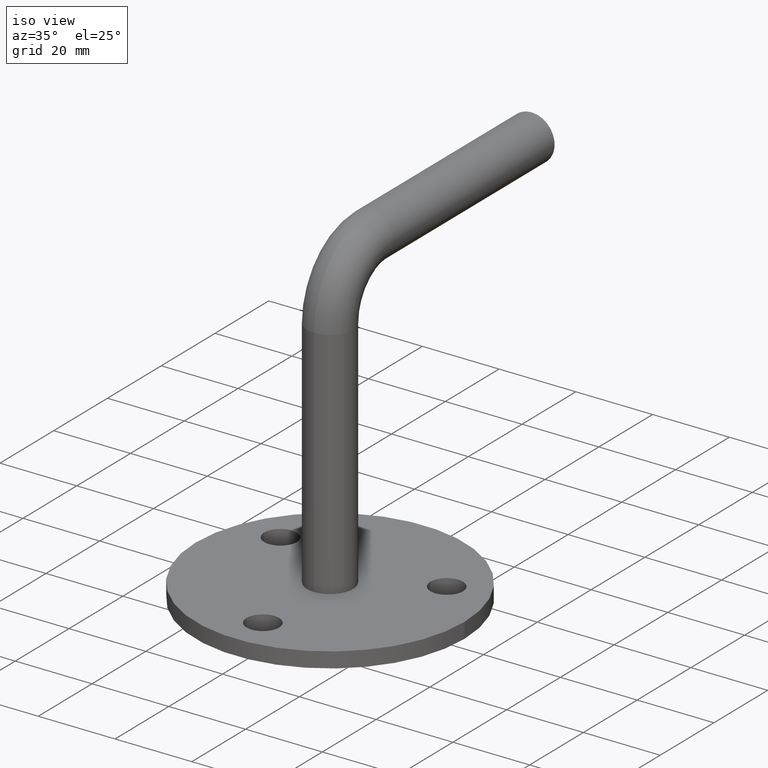
[diagram: clean part render]
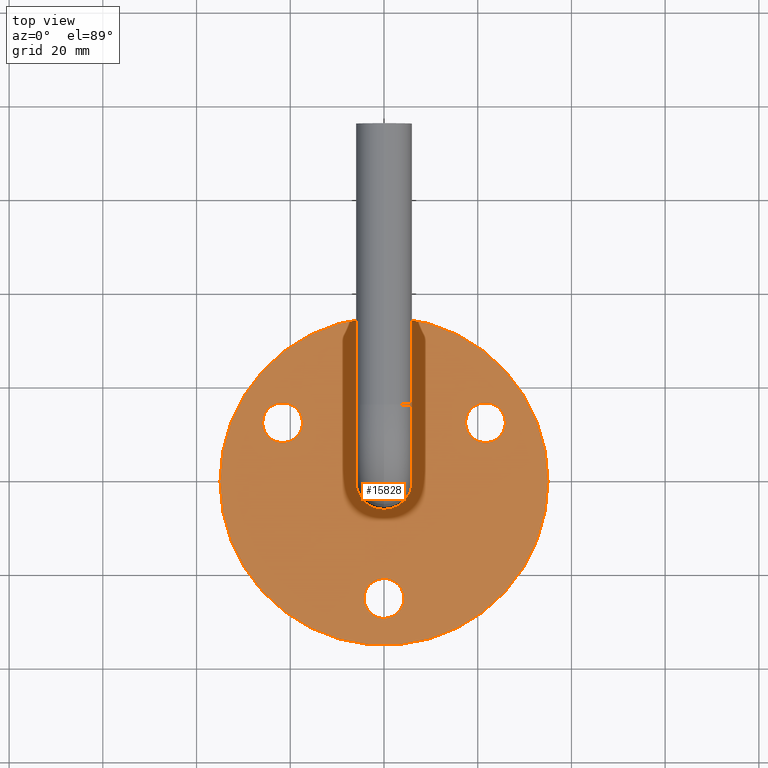
[diagram: tour spotlight — one face highlighted and labeled with its STEP entity id]
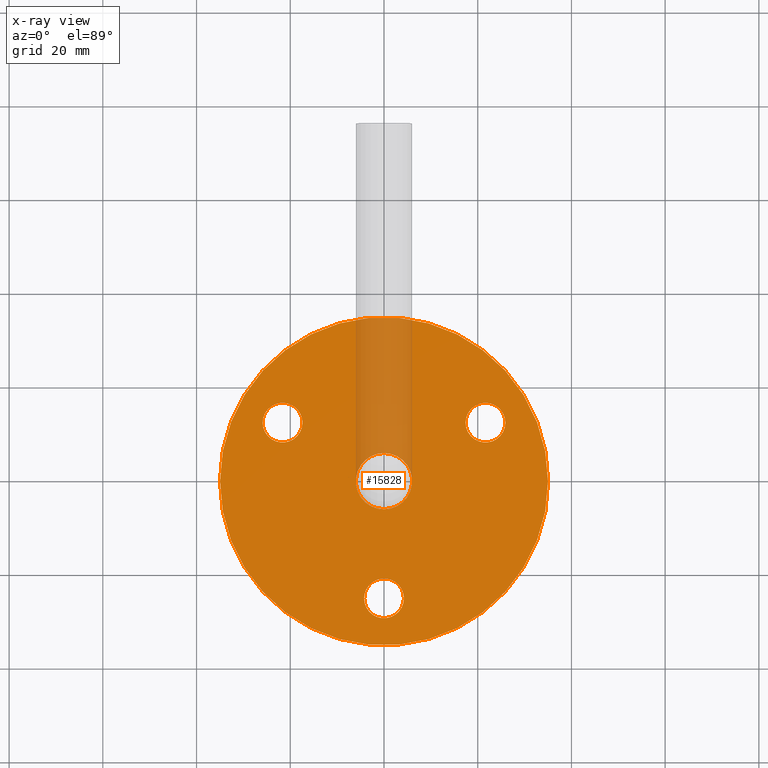
[diagram: x-ray of the same camera — body ghosted, this tour face saturated]
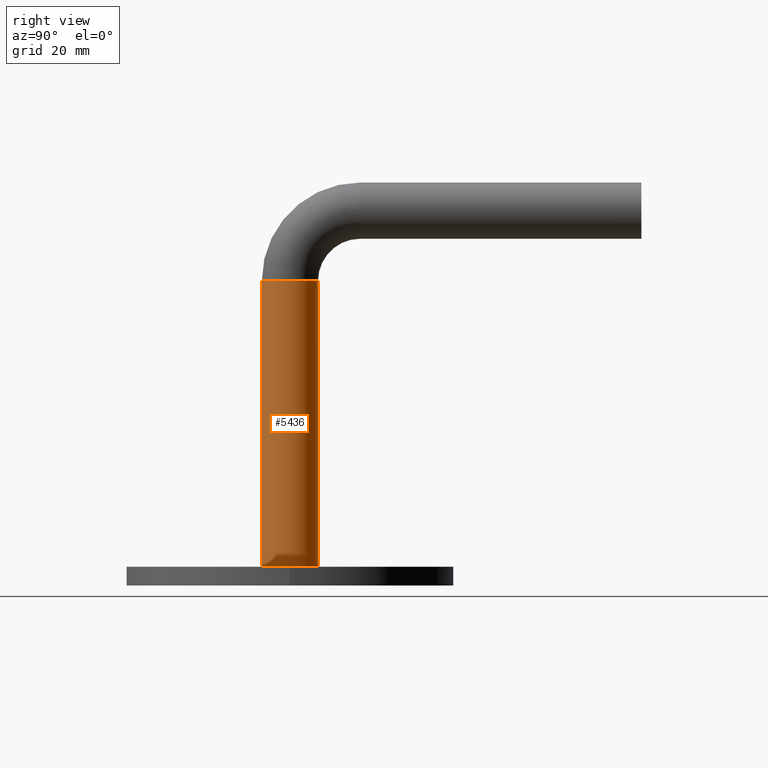
[diagram: tour spotlight — one face highlighted and labeled with its STEP entity id]
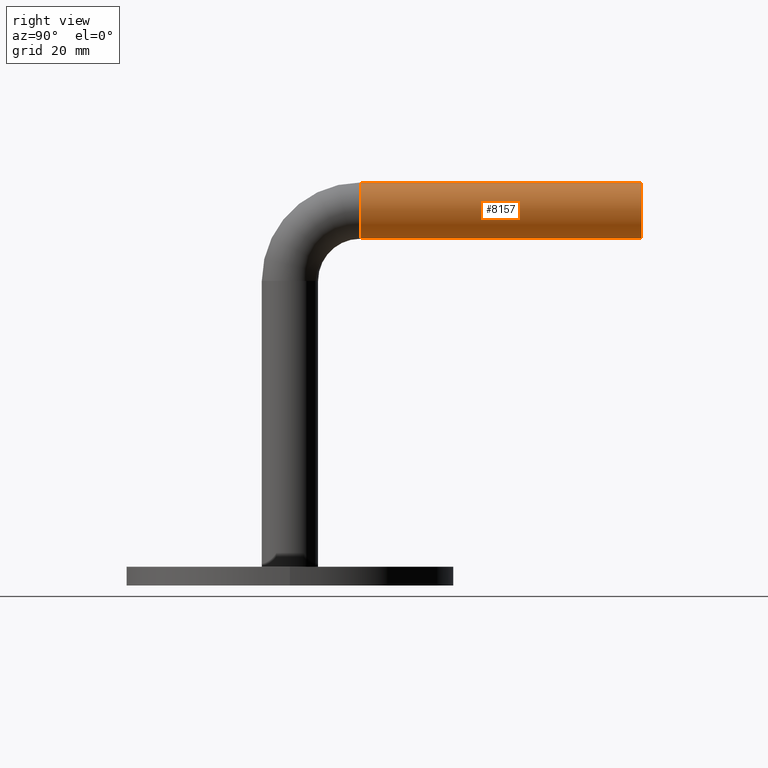
[diagram: tour spotlight — one face highlighted and labeled with its STEP entity id]
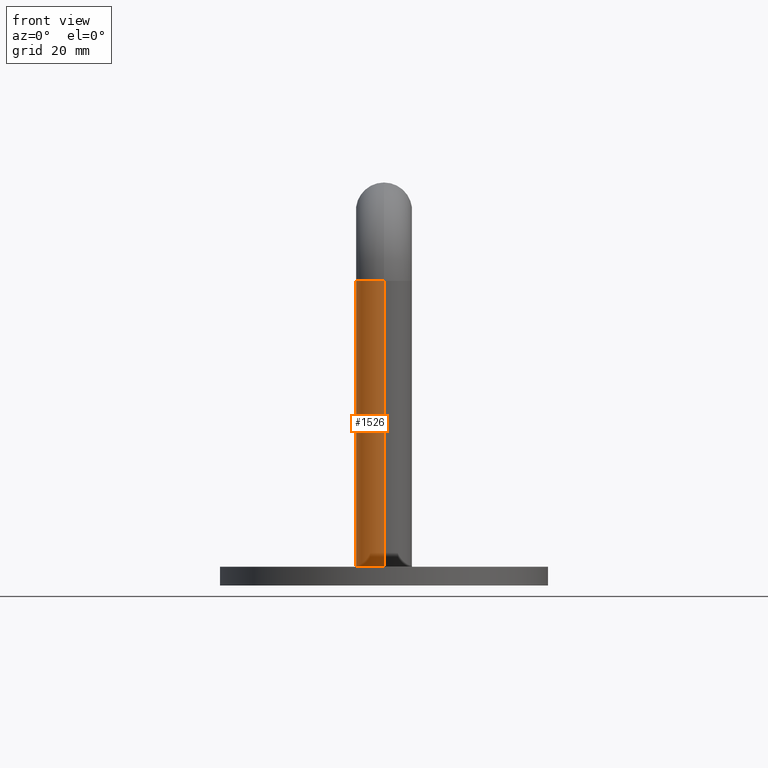
[diagram: tour spotlight — one face highlighted and labeled with its STEP entity id]
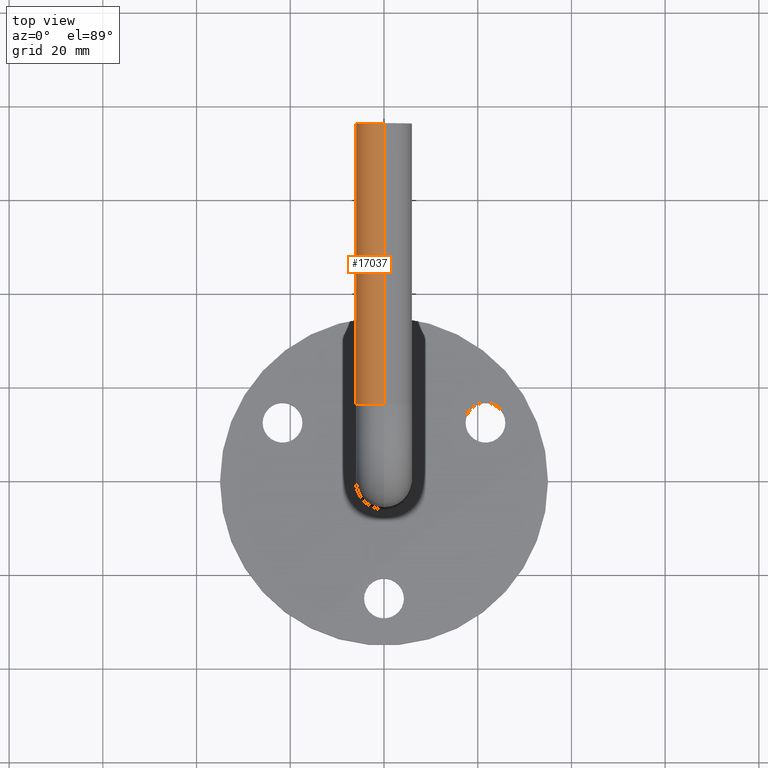
[diagram: tour spotlight — one face highlighted and labeled with its STEP entity id]
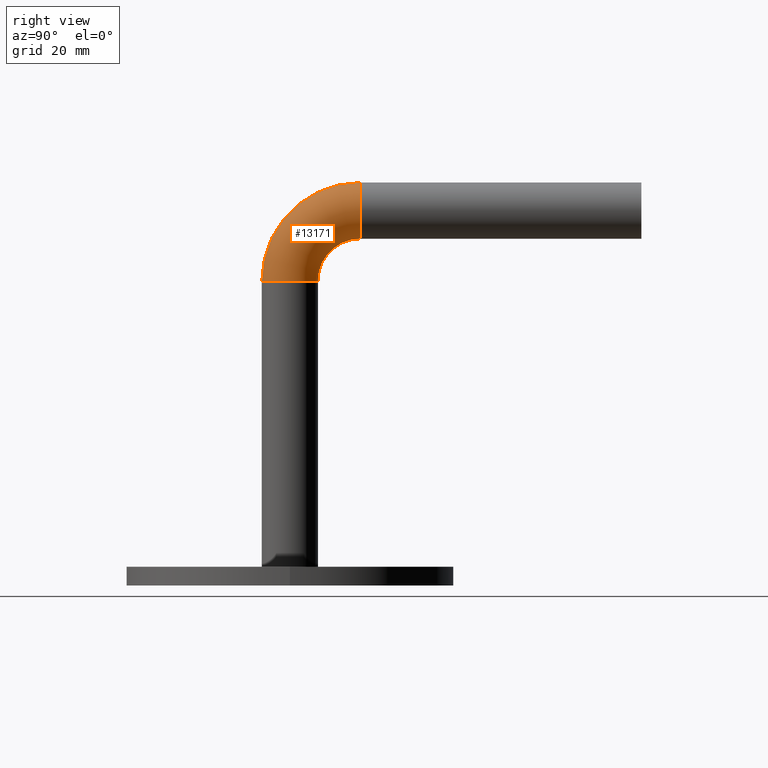
[diagram: tour spotlight — one face highlighted and labeled with its STEP entity id]
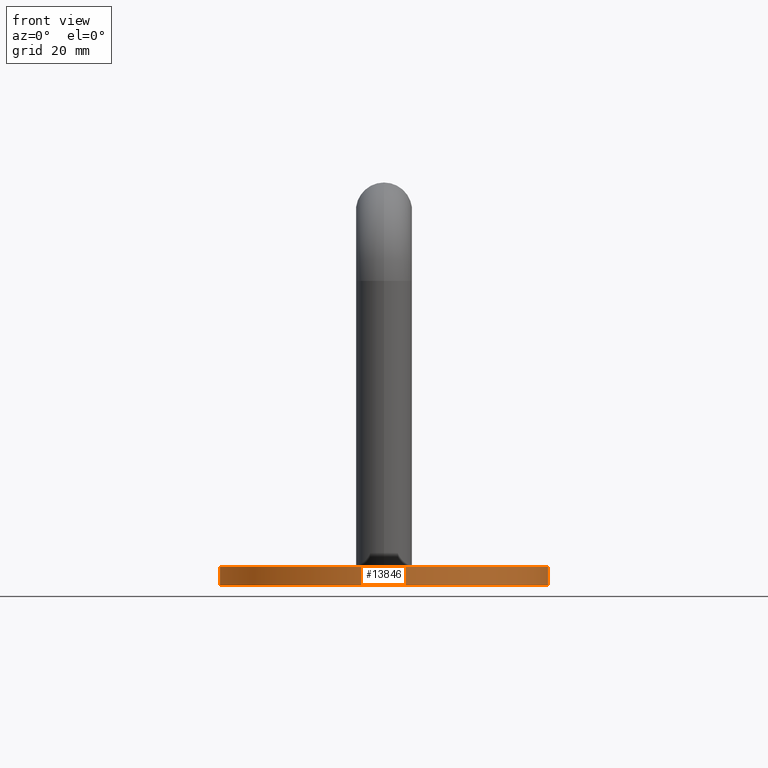
[diagram: tour spotlight — one face highlighted and labeled with its STEP entity id]
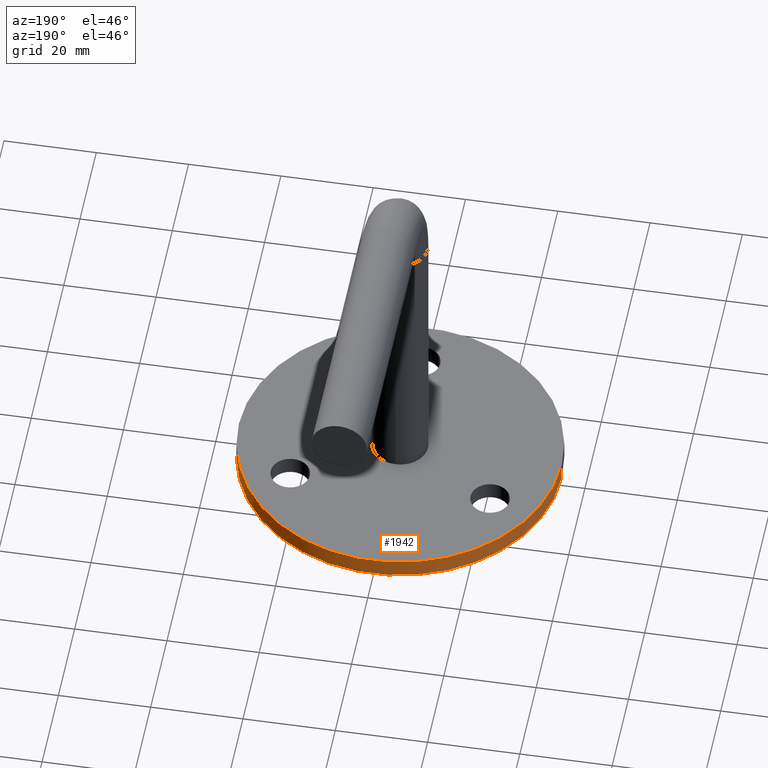
[diagram: tour spotlight — one face highlighted and labeled with its STEP entity id]
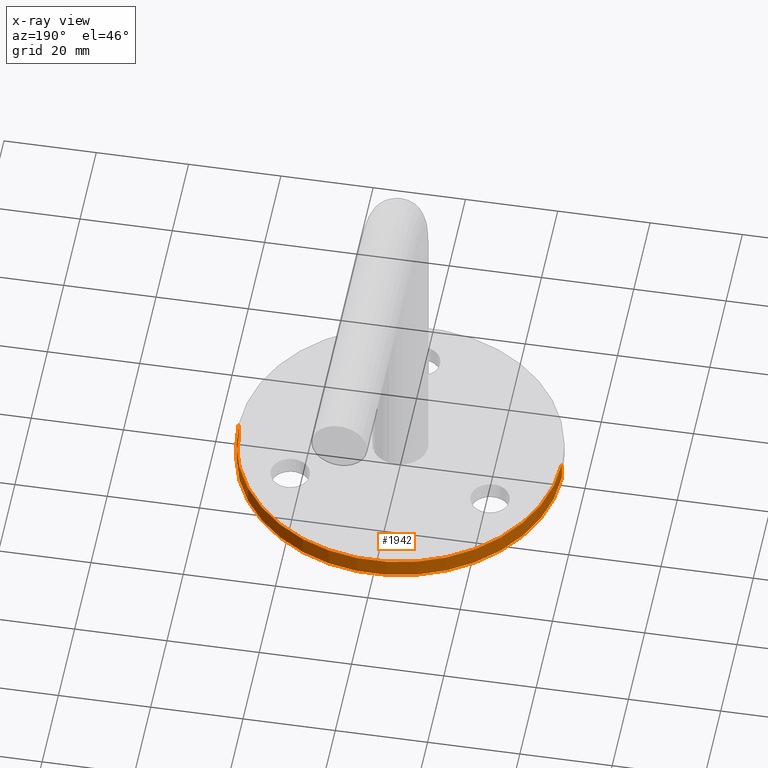
[diagram: x-ray of the same camera — body ghosted, this tour face saturated]
A machine part: a face-by-face anatomy tour. The part has 295 B-rep faces; the first image is the clean iso view, then the 8 largest visible faces are spotlighted one at a time (largest first), each with its STEP entity span.

Face 1 — top view, entity #15828. An x-ray twin of the same camera follows (body ghosted, this face saturated) — the face is partly hidden behind the body. In plain terms, the highlighted planar face has unit normal (0, 0, 1).
Definition (entity closure, byte-faithful):
#54 = ORIENTED_EDGE ( 'NONE', *, *, #12565, .F. ) ;
#383 = VERTEX_POINT ( 'NONE', #719 ) ;
#572 = CARTESIAN_POINT ( 'NONE',  ( 25.90063509461108637, 12.49999999999980282, 4.000000000000000000 ) ) ;
#586 = ORIENTED_EDGE ( 'NONE', *, *, #684, .F. ) ;
#607 = CARTESIAN_POINT ( 'NONE',  ( -17.40063509461091229, 12.50000000000010481, 4.000000000000000000 ) ) ;
#684 = EDGE_CURVE ( 'NONE', #10563, #2545, #10678, .T. ) ;
#719 = CARTESIAN_POINT ( 'NONE',  ( 0.000000000000000000, 6.000000000000000888, 4.000000000000003553 ) ) ;
#1008 = PLANE ( 'NONE',  #1342 ) ;
#1073 = CARTESIAN_POINT ( 'NONE',  ( 0.000000000000000000, 0.000000000000000000, 4.000000000000000000 ) ) ;
#1199 = FACE_BOUND ( 'NONE', #10950, .T. ) ;
#1342 = AXIS2_PLACEMENT_3D ( 'NONE', #7855, #7920, #11634 ) ;
#1565 = AXIS2_PLACEMENT_3D ( 'NONE', #1073, #14416, #15810 ) ;
#2343 = CARTESIAN_POINT ( 'NONE',  ( 21.65063509461108993, 12.49999999999980282, 4.000000000000000000 ) ) ;
#2490 = CIRCLE ( 'NONE', #9961, 35.00000000000000711 ) ;
#2545 = VERTEX_POINT ( 'NONE', #607 ) ;
#3269 = CIRCLE ( 'NONE', #8959, 4.249999999999996447 ) ;
#3363 = ORIENTED_EDGE ( 'NONE', *, *, #13144, .T. ) ;
#3468 = FACE_BOUND ( 'NONE', #7984, .T. ) ;
#3487 = DIRECTION ( 'NONE',  ( 0.000000000000000000, 0.000000000000000000, 1.000000000000000000 ) ) ;
#3942 = DIRECTION ( 'NONE',  ( 1.000000000000000000, 0.000000000000000000, 0.000000000000000000 ) ) ;
#3958 = CIRCLE ( 'NONE', #15385, 4.250000000000000000 ) ;
#4412 = DIRECTION ( 'NONE',  ( 0.000000000000000000, 0.000000000000000000, 1.000000000000000000 ) ) ;
#4680 = FACE_BOUND ( 'NONE', #11997, .T. ) ;
#4805 = EDGE_CURVE ( 'NONE', #14089, #16576, #4821, .T. ) ;
#4821 = CIRCLE ( 'NONE', #14998, 4.250000000000000000 ) ;
#4982 = DIRECTION ( 'NONE',  ( 1.000000000000000000, 0.000000000000000000, 0.000000000000000000 ) ) ;
#5246 = CARTESIAN_POINT ( 'NONE',  ( 17.40063509461109348, 12.49999999999980282, 4.000000000000000000 ) ) ;
#5360 = ORIENTED_EDGE ( 'NONE', *, *, #6344, .F. ) ;
#5520 = ORIENTED_EDGE ( 'NONE', *, *, #11734, .F. ) ;
#5748 = VERTEX_POINT ( 'NONE', #5246 ) ;
#5766 = DIRECTION ( 'NONE',  ( 0.000000000000000000, 0.000000000000000000, 1.000000000000000000 ) ) ;
#5852 = CARTESIAN_POINT ( 'NONE',  ( 4.250000000000000000, -25.00000000000000000, 4.000000000000000000 ) ) ;
#5955 = EDGE_CURVE ( 'NONE', #15298, #5748, #10626, .T. ) ;
#6344 = EDGE_CURVE ( 'NONE', #2545, #10563, #10409, .T. ) ;
#6432 = ORIENTED_EDGE ( 'NONE', *, *, #15909, .T. ) ;
#6633 = EDGE_LOOP ( 'NONE', ( #54, #5520 ) ) ;
#6889 = VERTEX_POINT ( 'NONE', #15021 ) ;
#6978 = AXIS2_PLACEMENT_3D ( 'NONE', #12084, #12128, #13643 ) ;
#7033 = CARTESIAN_POINT ( 'NONE',  ( 0.000000000000000000, -25.00000000000000000, 4.000000000000000000 ) ) ;
#7061 = CARTESIAN_POINT ( 'NONE',  ( 0.000000000000000000, -4.898587196589417759E-16, 4.000000000000003553 ) ) ;
#7588 = AXIS2_PLACEMENT_3D ( 'NONE', #7061, #4412, #11061 ) ;
#7855 = CARTESIAN_POINT ( 'NONE',  ( 0.000000000000000000, 0.000000000000000000, 4.000000000000000000 ) ) ;
#7920 = DIRECTION ( 'NONE',  ( 0.000000000000000000, 0.000000000000000000, 1.000000000000000000 ) ) ;
#7929 = DIRECTION ( 'NONE',  ( 1.000000000000000000, 0.000000000000000000, 0.000000000000000000 ) ) ;
#7984 = EDGE_LOOP ( 'NONE', ( #15509, #12159 ) ) ;
#8541 = AXIS2_PLACEMENT_3D ( 'NONE', #9953, #5766, #13885 ) ;
#8683 = CARTESIAN_POINT ( 'NONE',  ( -4.250000000000000000, -25.00000000000000000, 4.000000000000000000 ) ) ;
#8959 = AXIS2_PLACEMENT_3D ( 'NONE', #2343, #3487, #16904 ) ;
#9953 = CARTESIAN_POINT ( 'NONE',  ( -21.65063509461091584, 12.50000000000010481, 4.000000000000000000 ) ) ;
#9961 = AXIS2_PLACEMENT_3D ( 'NONE', #16836, #14223, #16659 ) ;
#10409 = CIRCLE ( 'NONE', #8541, 4.250000000000000000 ) ;
#10530 = CARTESIAN_POINT ( 'NONE',  ( 21.65063509461108993, 12.49999999999980282, 4.000000000000000000 ) ) ;
#10563 = VERTEX_POINT ( 'NONE', #14397 ) ;
#10599 = DIRECTION ( 'NONE',  ( 0.000000000000000000, 0.000000000000000000, 1.000000000000000000 ) ) ;
#10626 = CIRCLE ( 'NONE', #16555, 4.249999999999996447 ) ;
#10678 = CIRCLE ( 'NONE', #6978, 4.250000000000000000 ) ;
#10950 = EDGE_LOOP ( 'NONE', ( #5360, #586 ) ) ;
#11061 = DIRECTION ( 'NONE',  ( 1.000000000000000000, 0.000000000000000000, 0.000000000000000000 ) ) ;
#11264 = ORIENTED_EDGE ( 'NONE', *, *, #15735, .F. ) ;
#11376 = VERTEX_POINT ( 'NONE', #16476 ) ;
#11634 = DIRECTION ( 'NONE',  ( 1.000000000000000000, 0.000000000000000000, -0.000000000000000000 ) ) ;
#11734 = EDGE_CURVE ( 'NONE', #6889, #383, #15346, .T. ) ;
#11844 = EDGE_CURVE ( 'NONE', #16576, #14089, #3958, .T. ) ;
#11920 = CARTESIAN_POINT ( 'NONE',  ( 0.000000000000000000, -25.00000000000000000, 4.000000000000000000 ) ) ;
#11981 = DIRECTION ( 'NONE',  ( 0.000000000000000000, 0.000000000000000000, 1.000000000000000000 ) ) ;
#11997 = EDGE_LOOP ( 'NONE', ( #12516, #11264 ) ) ;
#12084 = CARTESIAN_POINT ( 'NONE',  ( -21.65063509461091584, 12.50000000000010481, 4.000000000000000000 ) ) ;
#12128 = DIRECTION ( 'NONE',  ( 0.000000000000000000, 0.000000000000000000, 1.000000000000000000 ) ) ;
#12148 = AXIS2_PLACEMENT_3D ( 'NONE', #15590, #14377, #4982 ) ;
#12159 = ORIENTED_EDGE ( 'NONE', *, *, #11844, .F. ) ;
#12309 = DIRECTION ( 'NONE',  ( 0.000000000000000000, 0.000000000000000000, 1.000000000000000000 ) ) ;
#12322 = CARTESIAN_POINT ( 'NONE',  ( -35.00000000000000711, 0.000000000000000000, 4.000000000000000000 ) ) ;
#12516 = ORIENTED_EDGE ( 'NONE', *, *, #5955, .F. ) ;
#12565 = EDGE_CURVE ( 'NONE', #383, #6889, #13472, .T. ) ;
#13144 = EDGE_CURVE ( 'NONE', #14954, #11376, #2490, .T. ) ;
#13472 = CIRCLE ( 'NONE', #7588, 6.000000000000000888 ) ;
#13643 = DIRECTION ( 'NONE',  ( 1.000000000000000000, 0.000000000000000000, 0.000000000000000000 ) ) ;
#13885 = DIRECTION ( 'NONE',  ( 1.000000000000000000, 0.000000000000000000, 0.000000000000000000 ) ) ;
#14089 = VERTEX_POINT ( 'NONE', #5852 ) ;
#14223 = DIRECTION ( 'NONE',  ( 0.000000000000000000, 0.000000000000000000, 1.000000000000000000 ) ) ;
#14311 = EDGE_LOOP ( 'NONE', ( #3363, #6432 ) ) ;
#14377 = DIRECTION ( 'NONE',  ( 0.000000000000000000, 0.000000000000000000, 1.000000000000000000 ) ) ;
#14397 = CARTESIAN_POINT ( 'NONE',  ( -25.90063509461091584, 12.50000000000010481, 4.000000000000000000 ) ) ;
#14416 = DIRECTION ( 'NONE',  ( 0.000000000000000000, 0.000000000000000000, 1.000000000000000000 ) ) ;
#14954 = VERTEX_POINT ( 'NONE', #12322 ) ;
#14998 = AXIS2_PLACEMENT_3D ( 'NONE', #7033, #12309, #15036 ) ;
#15021 = CARTESIAN_POINT ( 'NONE',  ( 7.347880794884120722E-16, -6.000000000000001776, 4.000000000000003553 ) ) ;
#15036 = DIRECTION ( 'NONE',  ( 1.000000000000000000, 0.000000000000000000, 0.000000000000000000 ) ) ;
#15298 = VERTEX_POINT ( 'NONE', #572 ) ;
#15346 = CIRCLE ( 'NONE', #12148, 6.000000000000000888 ) ;
#15385 = AXIS2_PLACEMENT_3D ( 'NONE', #11920, #11981, #7929 ) ;
#15509 = ORIENTED_EDGE ( 'NONE', *, *, #4805, .F. ) ;
#15590 = CARTESIAN_POINT ( 'NONE',  ( 0.000000000000000000, -4.898587196589417759E-16, 4.000000000000003553 ) ) ;
#15735 = EDGE_CURVE ( 'NONE', #5748, #15298, #3269, .T. ) ;
#15810 = DIRECTION ( 'NONE',  ( 1.000000000000000000, 0.000000000000000000, 0.000000000000000000 ) ) ;
#15828 = ADVANCED_FACE ( 'NONE', ( #4680, #1199, #3468, #16106, #16928 ), #1008, .T. ) ;
#15909 = EDGE_CURVE ( 'NONE', #11376, #14954, #16509, .T. ) ;
#16106 = FACE_BOUND ( 'NONE', #6633, .T. ) ;
#16476 = CARTESIAN_POINT ( 'NONE',  ( 35.00000000000000711, 4.286263797015737285E-15, 4.000000000000000000 ) ) ;
#16509 = CIRCLE ( 'NONE', #1565, 35.00000000000000711 ) ;
#16555 = AXIS2_PLACEMENT_3D ( 'NONE', #10530, #10599, #3942 ) ;
#16576 = VERTEX_POINT ( 'NONE', #8683 ) ;
#16659 = DIRECTION ( 'NONE',  ( 1.000000000000000000, 0.000000000000000000, 0.000000000000000000 ) ) ;
#16836 = CARTESIAN_POINT ( 'NONE',  ( 0.000000000000000000, 0.000000000000000000, 4.000000000000000000 ) ) ;
#16904 = DIRECTION ( 'NONE',  ( 1.000000000000000000, 0.000000000000000000, 0.000000000000000000 ) ) ;
#16928 = FACE_OUTER_BOUND ( 'NONE', #14311, .T. ) ;

Face 2 — right view, entity #5436. In plain terms, the highlighted cylindrical surface (edge-blend (fillet) strip) has radius 6 mm, axis along (-0, 0, -1).
Definition (entity closure, byte-faithful):
#173 = AXIS2_PLACEMENT_3D ( 'NONE', #6094, #5916, #12536 ) ;
#318 = DIRECTION ( 'NONE',  ( -0.000000000000000000, 1.224646799147353454E-16, -1.000000000000000000 ) ) ;
#383 = VERTEX_POINT ( 'NONE', #719 ) ;
#719 = CARTESIAN_POINT ( 'NONE',  ( 0.000000000000000000, 6.000000000000000888, 4.000000000000003553 ) ) ;
#2287 = VERTEX_POINT ( 'NONE', #4028 ) ;
#2345 = VECTOR ( 'NONE', #13847, 1000.000000000000000 ) ;
#2657 = EDGE_LOOP ( 'NONE', ( #16517, #10144, #10747, #2769 ) ) ;
#2769 = ORIENTED_EDGE ( 'NONE', *, *, #12117, .F. ) ;
#3446 = EDGE_CURVE ( 'NONE', #2287, #13592, #6694, .T. ) ;
#4028 = CARTESIAN_POINT ( 'NONE',  ( 0.000000000000000000, 5.999999999999992895, 64.99999999999988631 ) ) ;
#4850 = DIRECTION ( 'NONE',  ( -0.000000000000000000, 1.224646799147353454E-16, -1.000000000000000000 ) ) ;
#4982 = DIRECTION ( 'NONE',  ( 1.000000000000000000, 0.000000000000000000, 0.000000000000000000 ) ) ;
#5001 = LINE ( 'NONE', #12633, #2345 ) ;
#5177 = VECTOR ( 'NONE', #318, 1000.000000000000000 ) ;
#5426 = CARTESIAN_POINT ( 'NONE',  ( 0.000000000000000000, 5.999999999999992895, 64.99999999999988631 ) ) ;
#5436 = ADVANCED_FACE ( 'NONE', ( #15195 ), #17048, .T. ) ;
#5916 = DIRECTION ( 'NONE',  ( 0.000000000000000000, 0.000000000000000000, -1.000000000000000000 ) ) ;
#6094 = CARTESIAN_POINT ( 'NONE',  ( 0.000000000000000000, -7.960204194457784630E-15, 64.99999999999988631 ) ) ;
#6694 = CIRCLE ( 'NONE', #173, 6.000000000000000888 ) ;
#6889 = VERTEX_POINT ( 'NONE', #15021 ) ;
#6923 = EDGE_CURVE ( 'NONE', #13592, #6889, #5001, .T. ) ;
#7661 = LINE ( 'NONE', #5426, #5177 ) ;
#10144 = ORIENTED_EDGE ( 'NONE', *, *, #6923, .T. ) ;
#10747 = ORIENTED_EDGE ( 'NONE', *, *, #11734, .T. ) ;
#11544 = AXIS2_PLACEMENT_3D ( 'NONE', #11591, #4850, #17088 ) ;
#11591 = CARTESIAN_POINT ( 'NONE',  ( 0.000000000000000000, -7.960204194457784630E-15, 64.99999999999988631 ) ) ;
#11734 = EDGE_CURVE ( 'NONE', #6889, #383, #15346, .T. ) ;
#12117 = EDGE_CURVE ( 'NONE', #2287, #383, #7661, .T. ) ;
#12148 = AXIS2_PLACEMENT_3D ( 'NONE', #15590, #14377, #4982 ) ;
#12536 = DIRECTION ( 'NONE',  ( -1.000000000000000000, 0.000000000000000000, 0.000000000000000000 ) ) ;
#12633 = CARTESIAN_POINT ( 'NONE',  ( 7.347880794884120722E-16, -6.000000000000008882, 64.99999999999988631 ) ) ;
#13592 = VERTEX_POINT ( 'NONE', #14785 ) ;
#13847 = DIRECTION ( 'NONE',  ( -0.000000000000000000, 1.224646799147353454E-16, -1.000000000000000000 ) ) ;
#14377 = DIRECTION ( 'NONE',  ( 0.000000000000000000, 0.000000000000000000, 1.000000000000000000 ) ) ;
#14785 = CARTESIAN_POINT ( 'NONE',  ( 7.347880794884124666E-16, -6.000000000000009770, 64.99999999999988631 ) ) ;
#15021 = CARTESIAN_POINT ( 'NONE',  ( 7.347880794884120722E-16, -6.000000000000001776, 4.000000000000003553 ) ) ;
#15195 = FACE_OUTER_BOUND ( 'NONE', #2657, .T. ) ;
#15346 = CIRCLE ( 'NONE', #12148, 6.000000000000000888 ) ;
#15590 = CARTESIAN_POINT ( 'NONE',  ( 0.000000000000000000, -4.898587196589417759E-16, 4.000000000000003553 ) ) ;
#16517 = ORIENTED_EDGE ( 'NONE', *, *, #3446, .T. ) ;
#17048 = CYLINDRICAL_SURFACE ( 'NONE', #11544, 6.000000000000000888 ) ;
#17088 = DIRECTION ( 'NONE',  ( 0.000000000000000000, 1.000000000000000000, 0.000000000000000000 ) ) ;

Face 3 — right view, entity #8157. In plain terms, the highlighted cylindrical surface (edge-blend (fillet) strip) has radius 6 mm, axis along (0, 1, 0).
Definition (entity closure, byte-faithful):
#292 = FACE_OUTER_BOUND ( 'NONE', #843, .T. ) ;
#843 = EDGE_LOOP ( 'NONE', ( #4677, #10096, #10101, #6540 ) ) ;
#1023 = EDGE_CURVE ( 'NONE', #4774, #13477, #8127, .T. ) ;
#1099 = VECTOR ( 'NONE', #4990, 1000.000000000000000 ) ;
#1102 = CARTESIAN_POINT ( 'NONE',  ( 0.000000000000000000, 15.00000000000009592, 80.00000000000000000 ) ) ;
#1695 = EDGE_CURVE ( 'NONE', #13477, #9899, #2263, .T. ) ;
#1831 = VERTEX_POINT ( 'NONE', #5003 ) ;
#2263 = LINE ( 'NONE', #15379, #15505 ) ;
#2273 = DIRECTION ( 'NONE',  ( 0.000000000000000000, -1.000000000000000000, 1.437166698016966745E-14 ) ) ;
#3483 = DIRECTION ( 'NONE',  ( -1.000000000000000000, 0.000000000000000000, 0.000000000000000000 ) ) ;
#3575 = AXIS2_PLACEMENT_3D ( 'NONE', #16794, #2273, #3483 ) ;
#3630 = DIRECTION ( 'NONE',  ( 0.000000000000000000, 1.000000000000000000, 0.000000000000000000 ) ) ;
#4677 = ORIENTED_EDGE ( 'NONE', *, *, #1023, .F. ) ;
#4774 = VERTEX_POINT ( 'NONE', #10979 ) ;
#4936 = DIRECTION ( 'NONE',  ( -1.000000000000000000, 0.000000000000000000, 0.000000000000000000 ) ) ;
#4990 = DIRECTION ( 'NONE',  ( 0.000000000000000000, 1.000000000000000000, 0.000000000000000000 ) ) ;
#5003 = CARTESIAN_POINT ( 'NONE',  ( 7.347880794884114806E-16, 74.99999999999990052, 74.00000000000000000 ) ) ;
#6531 = CARTESIAN_POINT ( 'NONE',  ( 0.000000000000000000, 15.00000000000018296, 86.00000000000000000 ) ) ;
#6540 = ORIENTED_EDGE ( 'NONE', *, *, #1695, .F. ) ;
#6970 = DIRECTION ( 'NONE',  ( 0.000000000000000000, 0.000000000000000000, 1.000000000000000000 ) ) ;
#8127 = CIRCLE ( 'NONE', #12648, 6.000000000000000888 ) ;
#8157 = ADVANCED_FACE ( 'NONE', ( #292 ), #8293, .T. ) ;
#8293 = CYLINDRICAL_SURFACE ( 'NONE', #16788, 6.000000000000005329 ) ;
#9025 = EDGE_CURVE ( 'NONE', #1831, #9899, #9122, .T. ) ;
#9044 = DIRECTION ( 'NONE',  ( 0.000000000000000000, -1.000000000000000000, 1.437166698016966745E-14 ) ) ;
#9122 = CIRCLE ( 'NONE', #3575, 6.000000000000000888 ) ;
#9654 = CARTESIAN_POINT ( 'NONE',  ( 0.000000000000000000, 15.00000000000009592, 80.00000000000000000 ) ) ;
#9899 = VERTEX_POINT ( 'NONE', #13513 ) ;
#10096 = ORIENTED_EDGE ( 'NONE', *, *, #16935, .T. ) ;
#10101 = ORIENTED_EDGE ( 'NONE', *, *, #9025, .T. ) ;
#10979 = CARTESIAN_POINT ( 'NONE',  ( 7.347880794884114806E-16, 15.00000000000001066, 74.00000000000000000 ) ) ;
#12414 = DIRECTION ( 'NONE',  ( 0.000000000000000000, 1.000000000000000000, 0.000000000000000000 ) ) ;
#12648 = AXIS2_PLACEMENT_3D ( 'NONE', #1102, #9044, #4936 ) ;
#13346 = CARTESIAN_POINT ( 'NONE',  ( 7.347880794884120722E-16, 15.00000000000009592, 74.00000000000000000 ) ) ;
#13477 = VERTEX_POINT ( 'NONE', #6531 ) ;
#13513 = CARTESIAN_POINT ( 'NONE',  ( 0.000000000000000000, 75.00000000000007105, 86.00000000000000000 ) ) ;
#14763 = LINE ( 'NONE', #13346, #1099 ) ;
#15379 = CARTESIAN_POINT ( 'NONE',  ( 0.000000000000000000, 15.00000000000009592, 86.00000000000000000 ) ) ;
#15505 = VECTOR ( 'NONE', #3630, 1000.000000000000000 ) ;
#16788 = AXIS2_PLACEMENT_3D ( 'NONE', #9654, #12414, #6970 ) ;
#16794 = CARTESIAN_POINT ( 'NONE',  ( 0.000000000000000000, 74.99999999999998579, 80.00000000000000000 ) ) ;
#16935 = EDGE_CURVE ( 'NONE', #4774, #1831, #14763, .T. ) ;

Face 4 — front view, entity #1526. In plain terms, the highlighted cylindrical surface (edge-blend (fillet) strip) has radius 6 mm, axis along (-0, 0, -1).
Definition (entity closure, byte-faithful):
#318 = DIRECTION ( 'NONE',  ( -0.000000000000000000, 1.224646799147353454E-16, -1.000000000000000000 ) ) ;
#383 = VERTEX_POINT ( 'NONE', #719 ) ;
#719 = CARTESIAN_POINT ( 'NONE',  ( 0.000000000000000000, 6.000000000000000888, 4.000000000000003553 ) ) ;
#1408 = DIRECTION ( 'NONE',  ( -0.000000000000000000, 1.224646799147353454E-16, -1.000000000000000000 ) ) ;
#1526 = ADVANCED_FACE ( 'NONE', ( #17039 ), #9389, .T. ) ;
#2233 = ORIENTED_EDGE ( 'NONE', *, *, #6923, .F. ) ;
#2258 = EDGE_LOOP ( 'NONE', ( #2233, #10548, #7225, #16140 ) ) ;
#2287 = VERTEX_POINT ( 'NONE', #4028 ) ;
#2345 = VECTOR ( 'NONE', #13847, 1000.000000000000000 ) ;
#4028 = CARTESIAN_POINT ( 'NONE',  ( 0.000000000000000000, 5.999999999999992895, 64.99999999999988631 ) ) ;
#4412 = DIRECTION ( 'NONE',  ( 0.000000000000000000, 0.000000000000000000, 1.000000000000000000 ) ) ;
#4719 = DIRECTION ( 'NONE',  ( 0.000000000000000000, 0.000000000000000000, -1.000000000000000000 ) ) ;
#5001 = LINE ( 'NONE', #12633, #2345 ) ;
#5177 = VECTOR ( 'NONE', #318, 1000.000000000000000 ) ;
#5426 = CARTESIAN_POINT ( 'NONE',  ( 0.000000000000000000, 5.999999999999992895, 64.99999999999988631 ) ) ;
#6889 = VERTEX_POINT ( 'NONE', #15021 ) ;
#6923 = EDGE_CURVE ( 'NONE', #13592, #6889, #5001, .T. ) ;
#7061 = CARTESIAN_POINT ( 'NONE',  ( 0.000000000000000000, -4.898587196589417759E-16, 4.000000000000003553 ) ) ;
#7225 = ORIENTED_EDGE ( 'NONE', *, *, #12117, .T. ) ;
#7521 = EDGE_CURVE ( 'NONE', #13592, #2287, #14341, .T. ) ;
#7588 = AXIS2_PLACEMENT_3D ( 'NONE', #7061, #4412, #11061 ) ;
#7661 = LINE ( 'NONE', #5426, #5177 ) ;
#9389 = CYLINDRICAL_SURFACE ( 'NONE', #14197, 6.000000000000000888 ) ;
#10548 = ORIENTED_EDGE ( 'NONE', *, *, #7521, .T. ) ;
#11061 = DIRECTION ( 'NONE',  ( 1.000000000000000000, 0.000000000000000000, 0.000000000000000000 ) ) ;
#12117 = EDGE_CURVE ( 'NONE', #2287, #383, #7661, .T. ) ;
#12565 = EDGE_CURVE ( 'NONE', #383, #6889, #13472, .T. ) ;
#12633 = CARTESIAN_POINT ( 'NONE',  ( 7.347880794884120722E-16, -6.000000000000008882, 64.99999999999988631 ) ) ;
#13472 = CIRCLE ( 'NONE', #7588, 6.000000000000000888 ) ;
#13589 = DIRECTION ( 'NONE',  ( 0.000000000000000000, 1.000000000000000000, 0.000000000000000000 ) ) ;
#13592 = VERTEX_POINT ( 'NONE', #14785 ) ;
#13847 = DIRECTION ( 'NONE',  ( -0.000000000000000000, 1.224646799147353454E-16, -1.000000000000000000 ) ) ;
#14125 = CARTESIAN_POINT ( 'NONE',  ( 0.000000000000000000, -7.960204194457784630E-15, 64.99999999999988631 ) ) ;
#14197 = AXIS2_PLACEMENT_3D ( 'NONE', #15919, #1408, #13589 ) ;
#14341 = CIRCLE ( 'NONE', #15344, 6.000000000000000888 ) ;
#14785 = CARTESIAN_POINT ( 'NONE',  ( 7.347880794884124666E-16, -6.000000000000009770, 64.99999999999988631 ) ) ;
#15021 = CARTESIAN_POINT ( 'NONE',  ( 7.347880794884120722E-16, -6.000000000000001776, 4.000000000000003553 ) ) ;
#15342 = DIRECTION ( 'NONE',  ( -1.000000000000000000, 0.000000000000000000, 0.000000000000000000 ) ) ;
#15344 = AXIS2_PLACEMENT_3D ( 'NONE', #14125, #4719, #15342 ) ;
#15919 = CARTESIAN_POINT ( 'NONE',  ( 0.000000000000000000, -7.960204194457784630E-15, 64.99999999999988631 ) ) ;
#16140 = ORIENTED_EDGE ( 'NONE', *, *, #12565, .T. ) ;
#17039 = FACE_OUTER_BOUND ( 'NONE', #2258, .T. ) ;

Face 5 — top view, entity #17037. In plain terms, the highlighted cylindrical surface (edge-blend (fillet) strip) has radius 6 mm, axis along (0, 1, 0).
Definition (entity closure, byte-faithful):
#1099 = VECTOR ( 'NONE', #4990, 1000.000000000000000 ) ;
#1131 = EDGE_CURVE ( 'NONE', #9899, #1831, #16625, .T. ) ;
#1695 = EDGE_CURVE ( 'NONE', #13477, #9899, #2263, .T. ) ;
#1711 = AXIS2_PLACEMENT_3D ( 'NONE', #8988, #14211, #3684 ) ;
#1831 = VERTEX_POINT ( 'NONE', #5003 ) ;
#2263 = LINE ( 'NONE', #15379, #15505 ) ;
#3630 = DIRECTION ( 'NONE',  ( 0.000000000000000000, 1.000000000000000000, 0.000000000000000000 ) ) ;
#3684 = DIRECTION ( 'NONE',  ( -1.000000000000000000, 0.000000000000000000, 0.000000000000000000 ) ) ;
#4141 = CARTESIAN_POINT ( 'NONE',  ( 0.000000000000000000, 15.00000000000009592, 80.00000000000000000 ) ) ;
#4537 = ORIENTED_EDGE ( 'NONE', *, *, #1695, .T. ) ;
#4774 = VERTEX_POINT ( 'NONE', #10979 ) ;
#4990 = DIRECTION ( 'NONE',  ( 0.000000000000000000, 1.000000000000000000, 0.000000000000000000 ) ) ;
#5003 = CARTESIAN_POINT ( 'NONE',  ( 7.347880794884114806E-16, 74.99999999999990052, 74.00000000000000000 ) ) ;
#5494 = EDGE_CURVE ( 'NONE', #13477, #4774, #12696, .T. ) ;
#6531 = CARTESIAN_POINT ( 'NONE',  ( 0.000000000000000000, 15.00000000000018296, 86.00000000000000000 ) ) ;
#8988 = CARTESIAN_POINT ( 'NONE',  ( 0.000000000000000000, 74.99999999999998579, 80.00000000000000000 ) ) ;
#9098 = ORIENTED_EDGE ( 'NONE', *, *, #5494, .F. ) ;
#9466 = EDGE_LOOP ( 'NONE', ( #14073, #9098, #4537, #16925 ) ) ;
#9899 = VERTEX_POINT ( 'NONE', #13513 ) ;
#10979 = CARTESIAN_POINT ( 'NONE',  ( 7.347880794884114806E-16, 15.00000000000001066, 74.00000000000000000 ) ) ;
#12696 = CIRCLE ( 'NONE', #15434, 6.000000000000000888 ) ;
#13346 = CARTESIAN_POINT ( 'NONE',  ( 7.347880794884120722E-16, 15.00000000000009592, 74.00000000000000000 ) ) ;
#13395 = DIRECTION ( 'NONE',  ( 0.000000000000000000, 1.000000000000000000, 0.000000000000000000 ) ) ;
#13412 = CARTESIAN_POINT ( 'NONE',  ( 0.000000000000000000, 15.00000000000009592, 80.00000000000000000 ) ) ;
#13477 = VERTEX_POINT ( 'NONE', #6531 ) ;
#13511 = CYLINDRICAL_SURFACE ( 'NONE', #13852, 6.000000000000005329 ) ;
#13513 = CARTESIAN_POINT ( 'NONE',  ( 0.000000000000000000, 75.00000000000007105, 86.00000000000000000 ) ) ;
#13693 = DIRECTION ( 'NONE',  ( -1.000000000000000000, 0.000000000000000000, 0.000000000000000000 ) ) ;
#13852 = AXIS2_PLACEMENT_3D ( 'NONE', #4141, #13395, #14801 ) ;
#14073 = ORIENTED_EDGE ( 'NONE', *, *, #16935, .F. ) ;
#14211 = DIRECTION ( 'NONE',  ( 0.000000000000000000, -1.000000000000000000, 1.437166698016966745E-14 ) ) ;
#14763 = LINE ( 'NONE', #13346, #1099 ) ;
#14801 = DIRECTION ( 'NONE',  ( 0.000000000000000000, 0.000000000000000000, 1.000000000000000000 ) ) ;
#14815 = DIRECTION ( 'NONE',  ( 0.000000000000000000, -1.000000000000000000, 1.437166698016966745E-14 ) ) ;
#15379 = CARTESIAN_POINT ( 'NONE',  ( 0.000000000000000000, 15.00000000000009592, 86.00000000000000000 ) ) ;
#15434 = AXIS2_PLACEMENT_3D ( 'NONE', #13412, #14815, #13693 ) ;
#15505 = VECTOR ( 'NONE', #3630, 1000.000000000000000 ) ;
#16402 = FACE_OUTER_BOUND ( 'NONE', #9466, .T. ) ;
#16625 = CIRCLE ( 'NONE', #1711, 6.000000000000000888 ) ;
#16925 = ORIENTED_EDGE ( 'NONE', *, *, #1131, .T. ) ;
#16935 = EDGE_CURVE ( 'NONE', #4774, #1831, #14763, .T. ) ;
#17037 = ADVANCED_FACE ( 'NONE', ( #16402 ), #13511, .T. ) ;

Face 6 — right view, entity #13171. In plain terms, the highlighted toroidal blend (fillet) surface has major radius 15 mm and minor (blend) radius 6 mm.
Definition (entity closure, byte-faithful):
#173 = AXIS2_PLACEMENT_3D ( 'NONE', #6094, #5916, #12536 ) ;
#337 = CARTESIAN_POINT ( 'NONE',  ( 7.347880794884120722E-16, 14.99999999999999112, 65.00000000000000000 ) ) ;
#923 = CARTESIAN_POINT ( 'NONE',  ( 0.000000000000000000, 14.99999999999999112, 65.00000000000000000 ) ) ;
#1023 = EDGE_CURVE ( 'NONE', #4774, #13477, #8127, .T. ) ;
#1102 = CARTESIAN_POINT ( 'NONE',  ( 0.000000000000000000, 15.00000000000009592, 80.00000000000000000 ) ) ;
#2244 = DIRECTION ( 'NONE',  ( -1.000000000000000000, -0.000000000000000000, 0.000000000000000000 ) ) ;
#2287 = VERTEX_POINT ( 'NONE', #4028 ) ;
#3446 = EDGE_CURVE ( 'NONE', #2287, #13592, #6694, .T. ) ;
#3892 = EDGE_LOOP ( 'NONE', ( #11385, #16350, #7050, #11970 ) ) ;
#4028 = CARTESIAN_POINT ( 'NONE',  ( 0.000000000000000000, 5.999999999999992895, 64.99999999999988631 ) ) ;
#4615 = AXIS2_PLACEMENT_3D ( 'NONE', #15334, #11548, #4951 ) ;
#4774 = VERTEX_POINT ( 'NONE', #10979 ) ;
#4936 = DIRECTION ( 'NONE',  ( -1.000000000000000000, 0.000000000000000000, 0.000000000000000000 ) ) ;
#4951 = DIRECTION ( 'NONE',  ( 0.000000000000000000, 0.000000000000000000, 1.000000000000000000 ) ) ;
#5205 = CIRCLE ( 'NONE', #6105, 21.00000000000000355 ) ;
#5414 = AXIS2_PLACEMENT_3D ( 'NONE', #337, #6937, #14839 ) ;
#5916 = DIRECTION ( 'NONE',  ( 0.000000000000000000, 0.000000000000000000, -1.000000000000000000 ) ) ;
#6094 = CARTESIAN_POINT ( 'NONE',  ( 0.000000000000000000, -7.960204194457784630E-15, 64.99999999999988631 ) ) ;
#6105 = AXIS2_PLACEMENT_3D ( 'NONE', #923, #2244, #7249 ) ;
#6531 = CARTESIAN_POINT ( 'NONE',  ( 0.000000000000000000, 15.00000000000018296, 86.00000000000000000 ) ) ;
#6605 = TOROIDAL_SURFACE ( 'NONE', #4615, 15.00000000000000000, 6.000000000000000888 ) ;
#6694 = CIRCLE ( 'NONE', #173, 6.000000000000000888 ) ;
#6937 = DIRECTION ( 'NONE',  ( -1.000000000000000000, -0.000000000000000000, 0.000000000000000000 ) ) ;
#7050 = ORIENTED_EDGE ( 'NONE', *, *, #14883, .T. ) ;
#7249 = DIRECTION ( 'NONE',  ( 0.000000000000000000, 0.000000000000000000, 1.000000000000000000 ) ) ;
#8127 = CIRCLE ( 'NONE', #12648, 6.000000000000000888 ) ;
#8206 = EDGE_CURVE ( 'NONE', #13592, #13477, #5205, .T. ) ;
#8443 = FACE_OUTER_BOUND ( 'NONE', #3892, .T. ) ;
#9044 = DIRECTION ( 'NONE',  ( 0.000000000000000000, -1.000000000000000000, 1.437166698016966745E-14 ) ) ;
#9695 = CIRCLE ( 'NONE', #5414, 8.999999999999994671 ) ;
#10979 = CARTESIAN_POINT ( 'NONE',  ( 7.347880794884114806E-16, 15.00000000000001066, 74.00000000000000000 ) ) ;
#11385 = ORIENTED_EDGE ( 'NONE', *, *, #8206, .F. ) ;
#11548 = DIRECTION ( 'NONE',  ( -1.000000000000000000, -0.000000000000000000, 0.000000000000000000 ) ) ;
#11970 = ORIENTED_EDGE ( 'NONE', *, *, #1023, .T. ) ;
#12536 = DIRECTION ( 'NONE',  ( -1.000000000000000000, 0.000000000000000000, 0.000000000000000000 ) ) ;
#12648 = AXIS2_PLACEMENT_3D ( 'NONE', #1102, #9044, #4936 ) ;
#13171 = ADVANCED_FACE ( 'NONE', ( #8443 ), #6605, .T. ) ;
#13477 = VERTEX_POINT ( 'NONE', #6531 ) ;
#13592 = VERTEX_POINT ( 'NONE', #14785 ) ;
#14785 = CARTESIAN_POINT ( 'NONE',  ( 7.347880794884124666E-16, -6.000000000000009770, 64.99999999999988631 ) ) ;
#14839 = DIRECTION ( 'NONE',  ( 0.000000000000000000, 0.000000000000000000, 1.000000000000000000 ) ) ;
#14883 = EDGE_CURVE ( 'NONE', #2287, #4774, #9695, .T. ) ;
#15334 = CARTESIAN_POINT ( 'NONE',  ( 0.000000000000000000, 14.99999999999999112, 65.00000000000000000 ) ) ;
#16350 = ORIENTED_EDGE ( 'NONE', *, *, #3446, .F. ) ;

Face 7 — front view, entity #13846. In plain terms, the highlighted cylindrical surface (partial cylindrical patch) has radius 35 mm, axis along (-0, -0, -1).
Definition (entity closure, byte-faithful):
#245 = AXIS2_PLACEMENT_3D ( 'NONE', #17058, #10408, #1163 ) ;
#1163 = DIRECTION ( 'NONE',  ( -1.000000000000000000, 0.000000000000000000, 0.000000000000000000 ) ) ;
#1223 = VERTEX_POINT ( 'NONE', #7820 ) ;
#1246 = CYLINDRICAL_SURFACE ( 'NONE', #245, 35.00000000000000711 ) ;
#1879 = EDGE_CURVE ( 'NONE', #11376, #7020, #13644, .T. ) ;
#2105 = LINE ( 'NONE', #6912, #15348 ) ;
#2490 = CIRCLE ( 'NONE', #9961, 35.00000000000000711 ) ;
#2641 = EDGE_LOOP ( 'NONE', ( #5050, #14471, #16809, #7622 ) ) ;
#3791 = CARTESIAN_POINT ( 'NONE',  ( 35.00000000000000711, 4.286263797015737285E-15, 0.000000000000000000 ) ) ;
#5050 = ORIENTED_EDGE ( 'NONE', *, *, #1879, .F. ) ;
#5236 = CARTESIAN_POINT ( 'NONE',  ( 35.00000000000000711, 4.286263797015737285E-15, 4.000000000000000000 ) ) ;
#5283 = DIRECTION ( 'NONE',  ( -0.000000000000000000, -0.000000000000000000, -1.000000000000000000 ) ) ;
#5465 = DIRECTION ( 'NONE',  ( -0.000000000000000000, -0.000000000000000000, -1.000000000000000000 ) ) ;
#6912 = CARTESIAN_POINT ( 'NONE',  ( -35.00000000000000711, 0.000000000000000000, 4.000000000000000000 ) ) ;
#7020 = VERTEX_POINT ( 'NONE', #3791 ) ;
#7622 = ORIENTED_EDGE ( 'NONE', *, *, #10870, .T. ) ;
#7641 = CARTESIAN_POINT ( 'NONE',  ( 0.000000000000000000, 0.000000000000000000, 0.000000000000000000 ) ) ;
#7820 = CARTESIAN_POINT ( 'NONE',  ( -35.00000000000000711, 0.000000000000000000, 0.000000000000000000 ) ) ;
#8361 = EDGE_CURVE ( 'NONE', #14954, #1223, #2105, .T. ) ;
#8853 = VECTOR ( 'NONE', #5283, 1000.000000000000000 ) ;
#9508 = AXIS2_PLACEMENT_3D ( 'NONE', #7641, #15772, #10442 ) ;
#9961 = AXIS2_PLACEMENT_3D ( 'NONE', #16836, #14223, #16659 ) ;
#10408 = DIRECTION ( 'NONE',  ( -0.000000000000000000, -0.000000000000000000, -1.000000000000000000 ) ) ;
#10442 = DIRECTION ( 'NONE',  ( 1.000000000000000000, 0.000000000000000000, 0.000000000000000000 ) ) ;
#10870 = EDGE_CURVE ( 'NONE', #1223, #7020, #16198, .T. ) ;
#11376 = VERTEX_POINT ( 'NONE', #16476 ) ;
#12322 = CARTESIAN_POINT ( 'NONE',  ( -35.00000000000000711, 0.000000000000000000, 4.000000000000000000 ) ) ;
#12403 = FACE_OUTER_BOUND ( 'NONE', #2641, .T. ) ;
#13144 = EDGE_CURVE ( 'NONE', #14954, #11376, #2490, .T. ) ;
#13644 = LINE ( 'NONE', #5236, #8853 ) ;
#13846 = ADVANCED_FACE ( 'NONE', ( #12403 ), #1246, .T. ) ;
#14223 = DIRECTION ( 'NONE',  ( 0.000000000000000000, 0.000000000000000000, 1.000000000000000000 ) ) ;
#14471 = ORIENTED_EDGE ( 'NONE', *, *, #13144, .F. ) ;
#14954 = VERTEX_POINT ( 'NONE', #12322 ) ;
#15348 = VECTOR ( 'NONE', #5465, 1000.000000000000000 ) ;
#15772 = DIRECTION ( 'NONE',  ( 0.000000000000000000, 0.000000000000000000, 1.000000000000000000 ) ) ;
#16198 = CIRCLE ( 'NONE', #9508, 35.00000000000000711 ) ;
#16476 = CARTESIAN_POINT ( 'NONE',  ( 35.00000000000000711, 4.286263797015737285E-15, 4.000000000000000000 ) ) ;
#16659 = DIRECTION ( 'NONE',  ( 1.000000000000000000, 0.000000000000000000, 0.000000000000000000 ) ) ;
#16809 = ORIENTED_EDGE ( 'NONE', *, *, #8361, .T. ) ;
#16836 = CARTESIAN_POINT ( 'NONE',  ( 0.000000000000000000, 0.000000000000000000, 4.000000000000000000 ) ) ;
#17058 = CARTESIAN_POINT ( 'NONE',  ( 0.000000000000000000, 0.000000000000000000, 4.000000000000000000 ) ) ;

Face 8 — auxiliary view, entity #1942. An x-ray twin of the same camera follows (body ghosted, this face saturated) — the face is partly hidden behind the body. In plain terms, the highlighted cylindrical surface (partial cylindrical patch) has radius 35 mm, axis along (-0, -0, -1).
Definition (entity closure, byte-faithful):
#1073 = CARTESIAN_POINT ( 'NONE',  ( 0.000000000000000000, 0.000000000000000000, 4.000000000000000000 ) ) ;
#1187 = CIRCLE ( 'NONE', #7627, 35.00000000000000711 ) ;
#1223 = VERTEX_POINT ( 'NONE', #7820 ) ;
#1565 = AXIS2_PLACEMENT_3D ( 'NONE', #1073, #14416, #15810 ) ;
#1680 = ORIENTED_EDGE ( 'NONE', *, *, #1879, .T. ) ;
#1879 = EDGE_CURVE ( 'NONE', #11376, #7020, #13644, .T. ) ;
#1942 = ADVANCED_FACE ( 'NONE', ( #11557 ), #3100, .T. ) ;
#2105 = LINE ( 'NONE', #6912, #15348 ) ;
#3100 = CYLINDRICAL_SURFACE ( 'NONE', #9435, 35.00000000000000711 ) ;
#3791 = CARTESIAN_POINT ( 'NONE',  ( 35.00000000000000711, 4.286263797015737285E-15, 0.000000000000000000 ) ) ;
#4263 = DIRECTION ( 'NONE',  ( -1.000000000000000000, 0.000000000000000000, 0.000000000000000000 ) ) ;
#4807 = DIRECTION ( 'NONE',  ( 0.000000000000000000, 0.000000000000000000, 1.000000000000000000 ) ) ;
#5236 = CARTESIAN_POINT ( 'NONE',  ( 35.00000000000000711, 4.286263797015737285E-15, 4.000000000000000000 ) ) ;
#5283 = DIRECTION ( 'NONE',  ( -0.000000000000000000, -0.000000000000000000, -1.000000000000000000 ) ) ;
#5465 = DIRECTION ( 'NONE',  ( -0.000000000000000000, -0.000000000000000000, -1.000000000000000000 ) ) ;
#5956 = DIRECTION ( 'NONE',  ( 1.000000000000000000, 0.000000000000000000, 0.000000000000000000 ) ) ;
#6912 = CARTESIAN_POINT ( 'NONE',  ( -35.00000000000000711, 0.000000000000000000, 4.000000000000000000 ) ) ;
#7020 = VERTEX_POINT ( 'NONE', #3791 ) ;
#7627 = AXIS2_PLACEMENT_3D ( 'NONE', #12746, #4807, #5956 ) ;
#7820 = CARTESIAN_POINT ( 'NONE',  ( -35.00000000000000711, 0.000000000000000000, 0.000000000000000000 ) ) ;
#8361 = EDGE_CURVE ( 'NONE', #14954, #1223, #2105, .T. ) ;
#8450 = ORIENTED_EDGE ( 'NONE', *, *, #8361, .F. ) ;
#8853 = VECTOR ( 'NONE', #5283, 1000.000000000000000 ) ;
#9435 = AXIS2_PLACEMENT_3D ( 'NONE', #16581, #12519, #4263 ) ;
#11160 = ORIENTED_EDGE ( 'NONE', *, *, #15909, .F. ) ;
#11376 = VERTEX_POINT ( 'NONE', #16476 ) ;
#11557 = FACE_OUTER_BOUND ( 'NONE', #12185, .T. ) ;
#12185 = EDGE_LOOP ( 'NONE', ( #11160, #1680, #14716, #8450 ) ) ;
#12322 = CARTESIAN_POINT ( 'NONE',  ( -35.00000000000000711, 0.000000000000000000, 4.000000000000000000 ) ) ;
#12519 = DIRECTION ( 'NONE',  ( -0.000000000000000000, -0.000000000000000000, -1.000000000000000000 ) ) ;
#12746 = CARTESIAN_POINT ( 'NONE',  ( 0.000000000000000000, 0.000000000000000000, 0.000000000000000000 ) ) ;
#13644 = LINE ( 'NONE', #5236, #8853 ) ;
#14416 = DIRECTION ( 'NONE',  ( 0.000000000000000000, 0.000000000000000000, 1.000000000000000000 ) ) ;
#14716 = ORIENTED_EDGE ( 'NONE', *, *, #16644, .T. ) ;
#14954 = VERTEX_POINT ( 'NONE', #12322 ) ;
#15348 = VECTOR ( 'NONE', #5465, 1000.000000000000000 ) ;
#15810 = DIRECTION ( 'NONE',  ( 1.000000000000000000, 0.000000000000000000, 0.000000000000000000 ) ) ;
#15909 = EDGE_CURVE ( 'NONE', #11376, #14954, #16509, .T. ) ;
#16476 = CARTESIAN_POINT ( 'NONE',  ( 35.00000000000000711, 4.286263797015737285E-15, 4.000000000000000000 ) ) ;
#16509 = CIRCLE ( 'NONE', #1565, 35.00000000000000711 ) ;
#16581 = CARTESIAN_POINT ( 'NONE',  ( 0.000000000000000000, 0.000000000000000000, 4.000000000000000000 ) ) ;
#16644 = EDGE_CURVE ( 'NONE', #7020, #1223, #1187, .T. ) ;